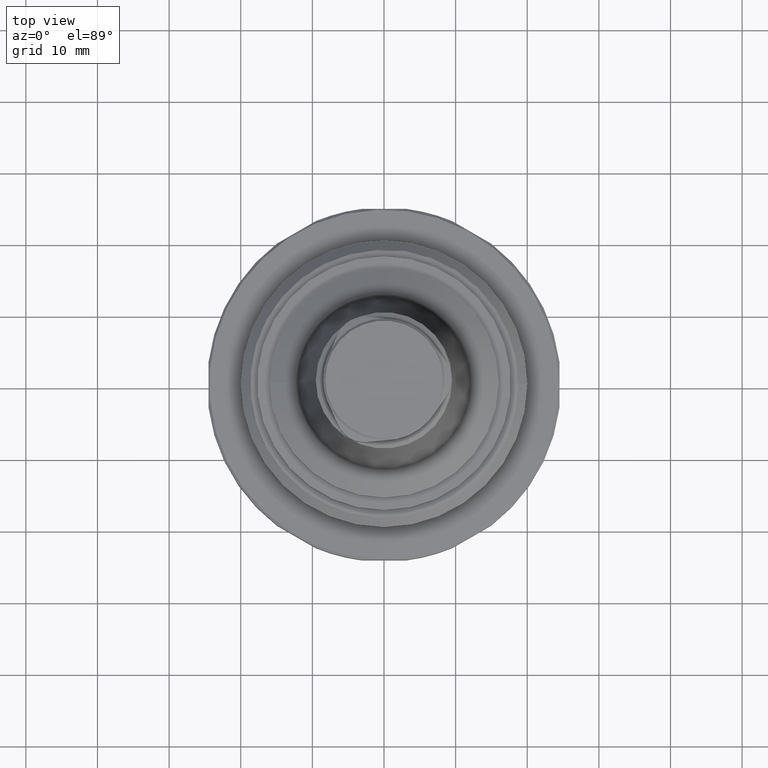
[diagram: clean part render]
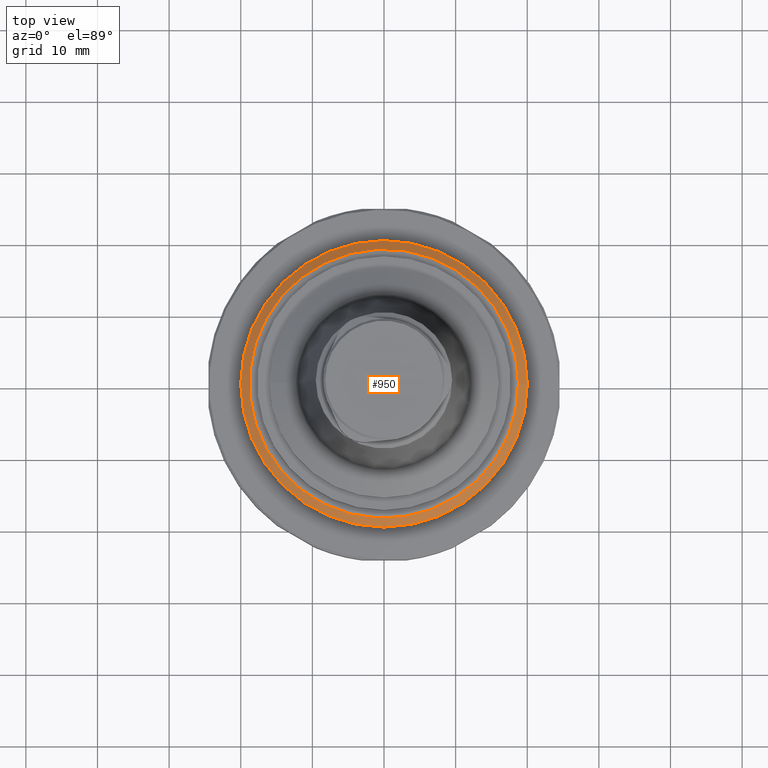
[diagram: same view with one face highlighted and labeled with its STEP entity id]
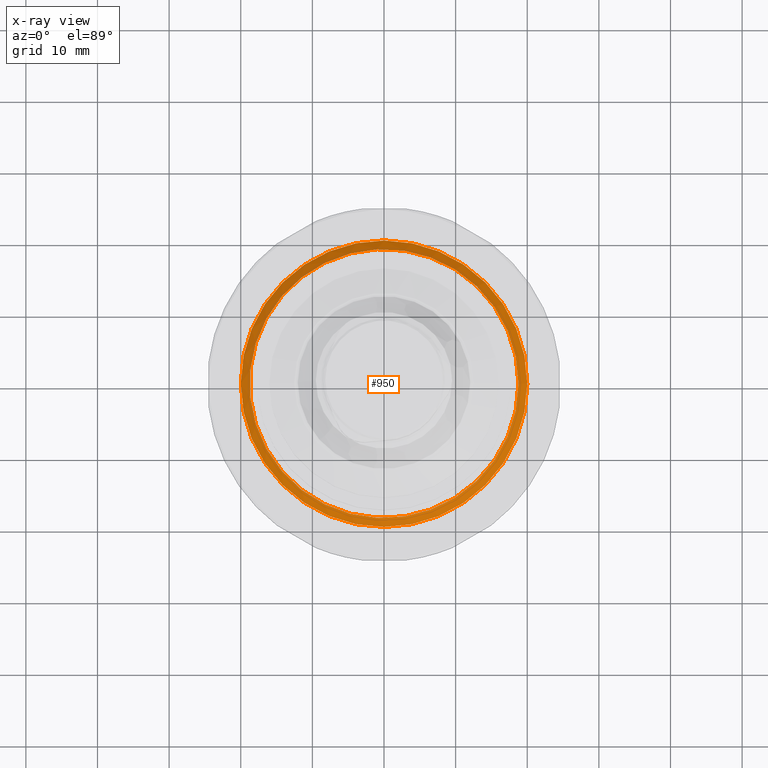
[diagram: x-ray of the same camera — body ghosted, the highlighted face saturated]
A machine part, top view. The second image highlights one B-rep face of the part: STEP entity #950.
The next image is the same camera in x-ray: the body ghosted, the highlighted face saturated — about 0% of this face is hidden behind the body in this view.
In plain terms, the highlighted conical surface has half-angle 45 deg.
Its self-contained STEP definition (entity closure, byte-faithful):
#95=CONICAL_SURFACE('',#1063,18.7757350979542,0.785398163397448);
#308=ORIENTED_EDGE('',*,*,#496,.F.);
#309=ORIENTED_EDGE('',*,*,#497,.T.);
#496=EDGE_CURVE('',#604,#604,#677,.T.);
#497=EDGE_CURVE('',#605,#605,#678,.T.);
#604=VERTEX_POINT('',#1672);
#605=VERTEX_POINT('',#1675);
#677=CIRCLE('',#1062,20.);
#678=CIRCLE('',#1064,18.7757350979542);
#759=EDGE_LOOP('',(#308));
#760=EDGE_LOOP('',(#309));
#855=FACE_BOUND('',#759,.T.);
#856=FACE_BOUND('',#760,.T.);
#950=ADVANCED_FACE('',(#855,#856),#95,.T.);
#1062=AXIS2_PLACEMENT_3D('',#1671,#1271,#1272);
#1063=AXIS2_PLACEMENT_3D('',#1673,#1273,#1274);
#1064=AXIS2_PLACEMENT_3D('',#1674,#1275,#1276);
#1271=DIRECTION('',(1.1985897436163E-16,5.68031218956752E-33,-1.));
#1272=DIRECTION('',(1.,-2.71836589696428E-16,1.1985897436163E-16));
#1273=DIRECTION('',(1.1985897436163E-16,5.68031218956752E-33,-1.));
#1274=DIRECTION('',(1.,-2.71836589696428E-16,1.1985897436163E-16));
#1275=DIRECTION('',(1.1985897436163E-16,5.68031218956752E-33,-1.));
#1276=DIRECTION('',(1.,-2.71836589696428E-16,1.1985897436163E-16));
#1671=CARTESIAN_POINT('',(1.07697956228498E-15,6.13264751873343E-33,-6.9937822173509));
#1672=CARTESIAN_POINT('',(20.,-5.43673179392856E-15,-6.9937822173509));
#1673=CARTESIAN_POINT('',(9.3024042677882E-16,-8.21559327617271E-34,-5.76951731530506));
#1674=CARTESIAN_POINT('',(9.3024042677882E-16,-8.21559327617271E-34,-5.76951731530506));
#1675=CARTESIAN_POINT('',(18.7757350979542,-5.10393179807139E-15,-5.76951731530506));